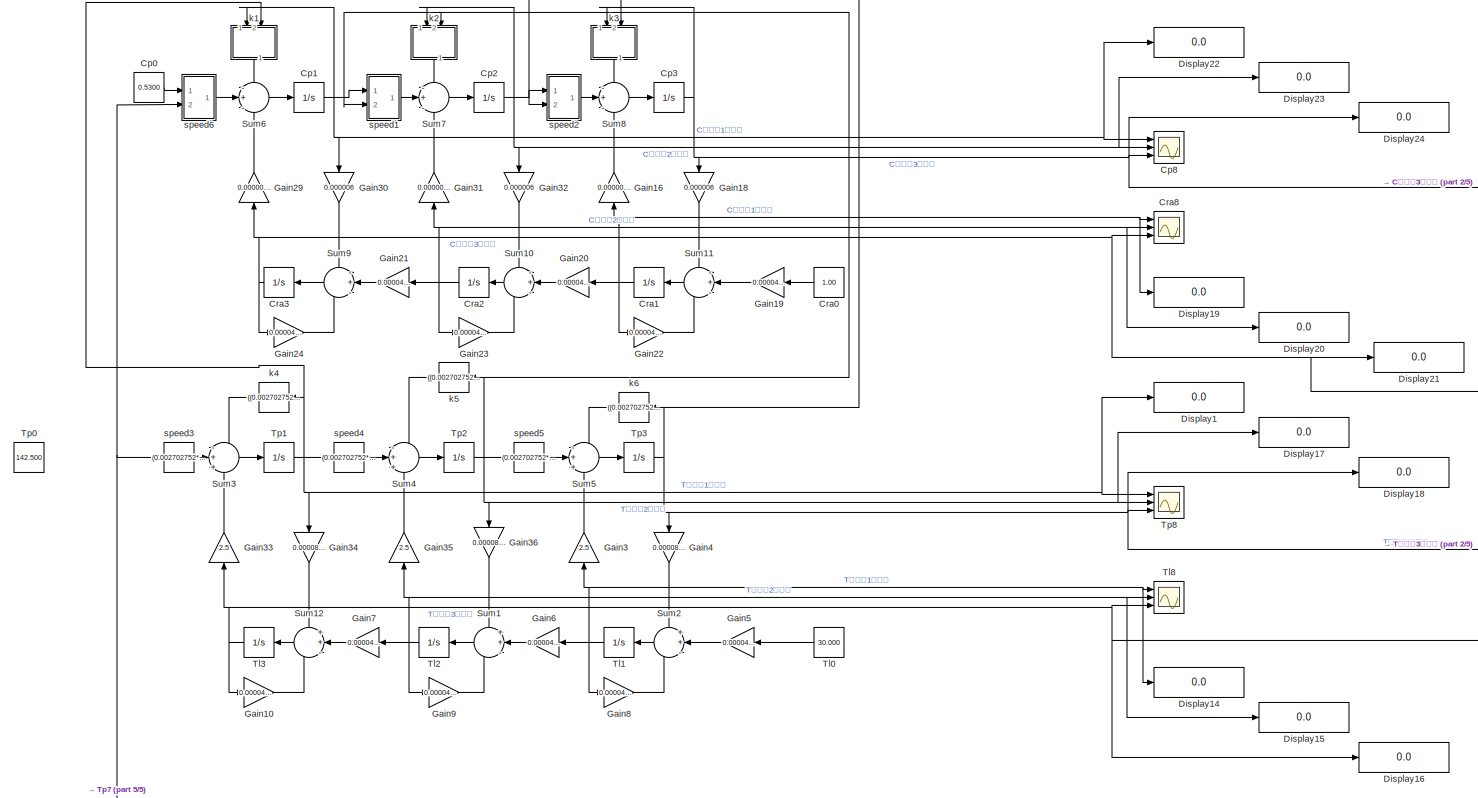
[diagram: root canvas - part 1/5, full width, top band]
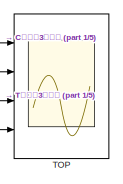
[diagram: root canvas - part 2/5, top right region]
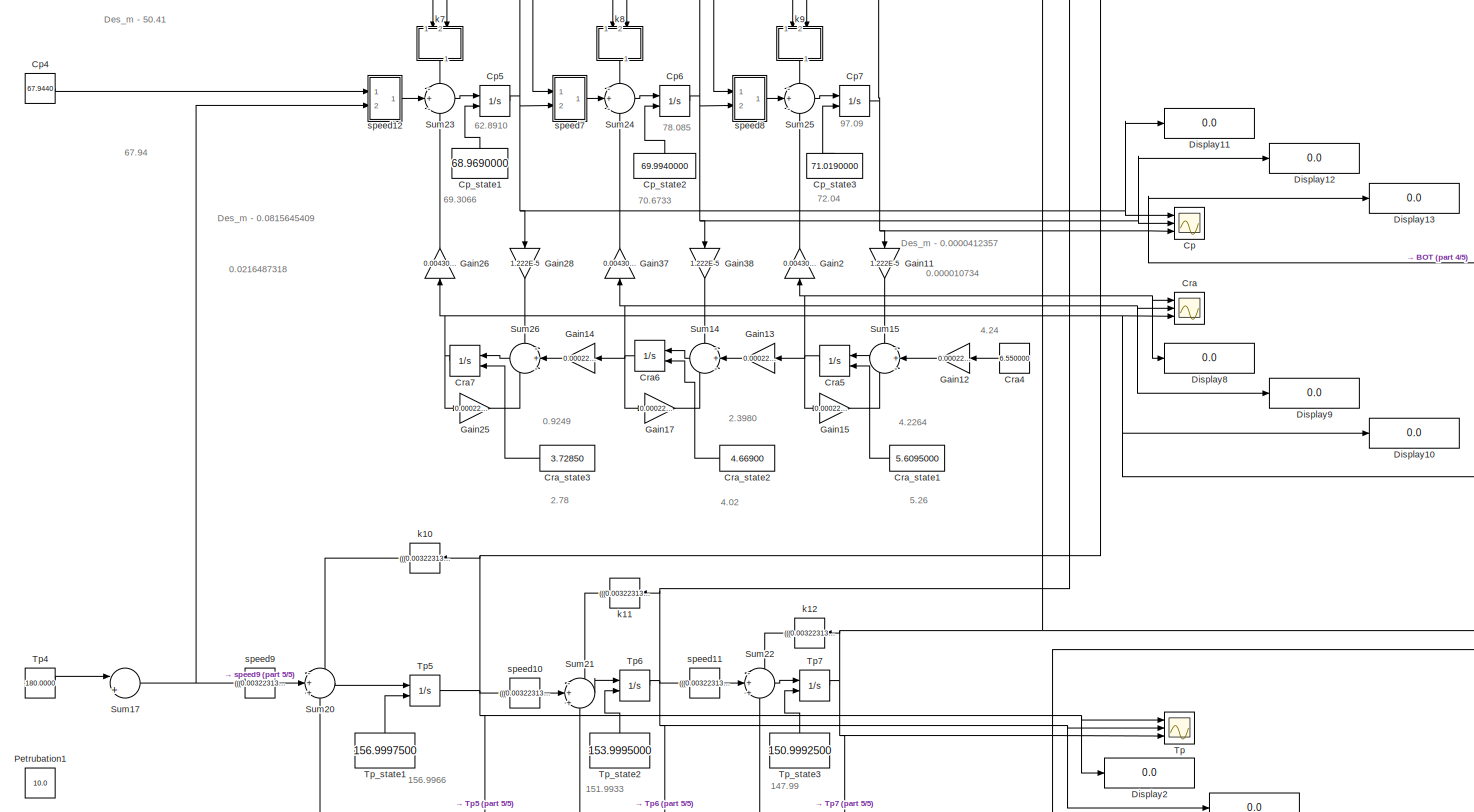
[diagram: root canvas - part 3/5, full width, middle band]
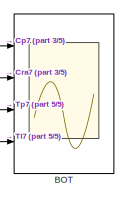
[diagram: root canvas - part 4/5, middle right region]
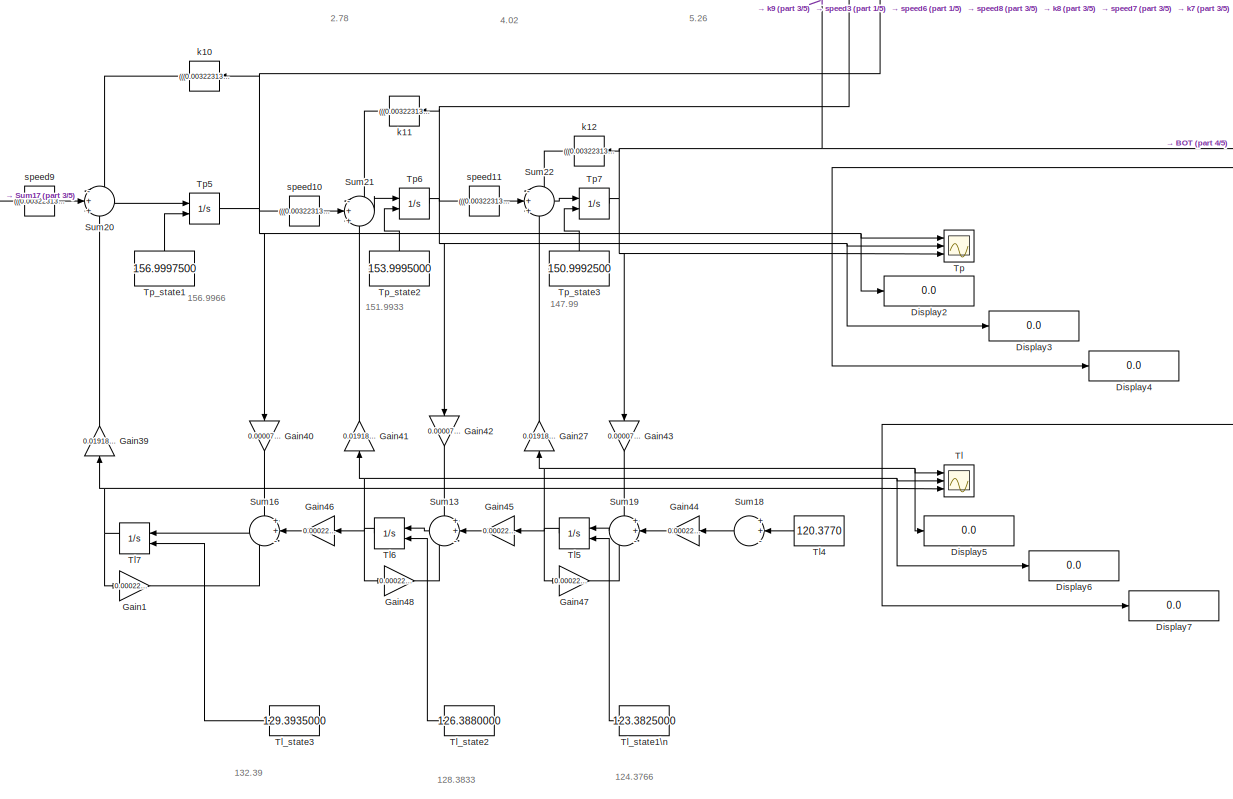
[diagram: root canvas - part 5/5, bottom center region]
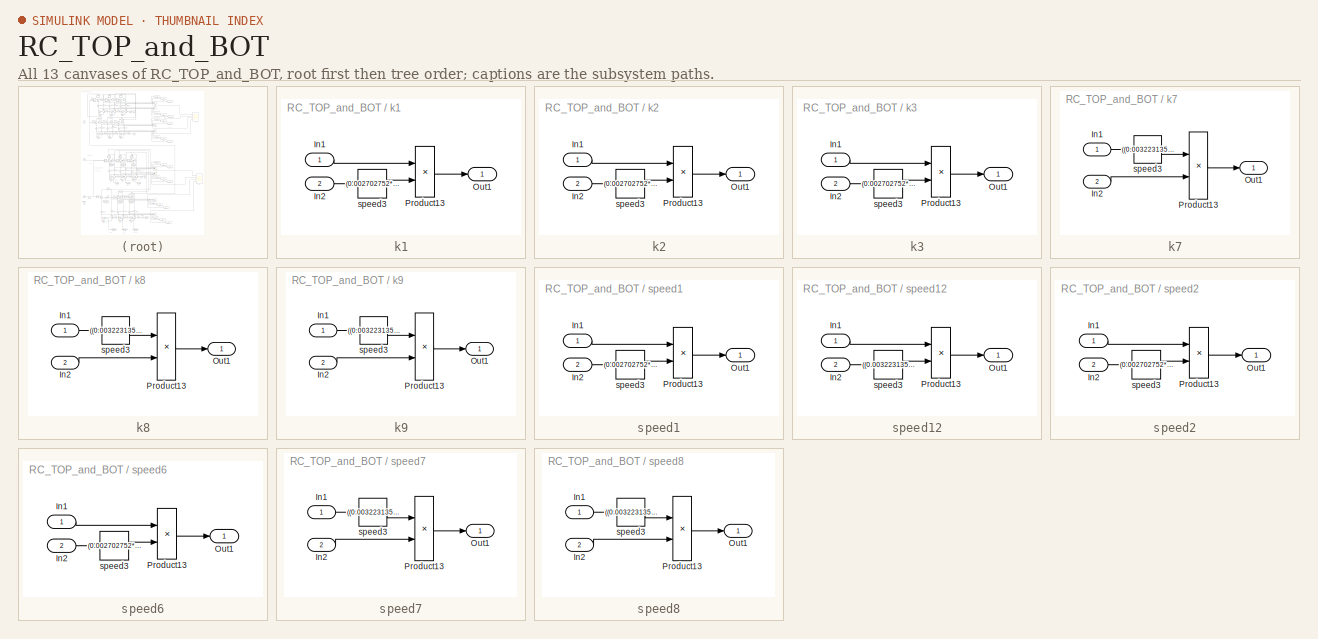
[diagram: thumbnail index - all 13 canvases of the model, root first then tree order]
MODEL RC_TOP_and_BOT
KIND model
BLOCK [Scope] BOT
  Floating = off
  NumInputPorts = 4
  Ports = [4]
  SID = 485
  ScopeSpecificationString = Simulink.scopes.TimeScopeBlockCfg('CurrentConfiguration', extmgr.ConfigurationSet(extmgr.Configuration('Core','General UI',true,'FigureColor',[1 1 1]),extmgr.Configuration('Core','Source UI',true),extmgr.Configuration('Sources','WiredSimulink',true,'DataLogging',true,'DataLoggingVariableName','TV_SM2','DataLoggingSaveFormat','StructureWithTime','SampleTime','0','DataLoggingDecimation','1','DataLog...<+5994ch>
BLOCK [Scope] Cp
  Floating = off
  NumInputPorts = 3
  Ports = [3]
  SID = 238
  ScopeSpecificationString = C++SS(StrPVP('Location','[5, 49, 1371, 737]'),StrPVP('Open','off'),StrPVP('TickLabels','on'),StrPVP('ZoomMode','xonly'),MxPVP('AxesTitles',53,'struct(''axes1'',''%<SignalLabel>'',''axes2'',''%<SignalLabel>'',''axes3'',''%<SignalLabel>'')'),MxPVP('ScopeGraphics',56,'struct(''FigureColor'',''[1 1 1]'',''AxesColor'',''[1 1 1]'',''AxesTickColor'',''[0 0 0]'',''LineColors'',''[0 0 0;1 0 1;0 1 1;1 0 0;0...<+445ch>
BLOCK [Constant] Cp0
  SID = 4
  Value = 0.5300
BLOCK [Integrator] Cp1
  InitialCondition = 0.682000
  Ports = [1, 1]
  SID = 5
BLOCK [Integrator] Cp2
  InitialCondition = 0.834000
  Ports = [1, 1]
  SID = 6
BLOCK [Integrator] Cp3
  InitialCondition = 0.98600
  Ports = [1, 1]
  SID = 7
BLOCK [Constant] Cp4
  SID = 239
  Value = 67.9440
BLOCK [Integrator] Cp5
  InitialCondition = 69.3066
  InitialConditionSource = external
  Ports = [2, 1]
  SID = 240
BLOCK [Integrator] Cp6
  InitialCondition = 70.6733
  InitialConditionSource = external
  Ports = [2, 1]
  SID = 241
BLOCK [Integrator] Cp7
  InitialCondition = 72.04
  InitialConditionSource = external
  Ports = [2, 1]
  SID = 242
BLOCK [Scope] Cp8
  Floating = off
  NumInputPorts = 3
  Ports = [3]
  SID = 455
  ScopeSpecificationString = C++SS(StrPVP('Location','[5, 49, 1371, 737]'),StrPVP('Open','off'),StrPVP('TickLabels','on'),StrPVP('ZoomMode','xonly'),MxPVP('AxesTitles',53,'struct(''axes1'',''%<SignalLabel>'',''axes2'',''%<SignalLabel>'',''axes3'',''%<SignalLabel>'')'),MxPVP('ScopeGraphics',56,'struct(''FigureColor'',''[1 1 1]'',''AxesColor'',''[1 1 1]'',''AxesTickColor'',''[0 0 0]'',''LineColors'',''[0 0 0;1 0 1;0 1 1;1 0 0;0...<+446ch>
BLOCK [Constant] Cp_state1
  SID = 243
  Value = 68.9690000
BLOCK [Constant] Cp_state2
  SID = 244
  Value = 69.9940000
BLOCK [Constant] Cp_state3
  SID = 245
  Value = 71.0190000
BLOCK [Scope] Cra
  Floating = off
  NumInputPorts = 3
  Ports = [3]
  SID = 246
  ScopeSpecificationString = C++SS(StrPVP('Location','[5, 49, 1371, 737]'),StrPVP('Open','off'),StrPVP('TickLabels','on'),StrPVP('ZoomMode','xonly'),MxPVP('AxesTitles',53,'struct(''axes1'',''%<SignalLabel>'',''axes2'',''%<SignalLabel>'',''axes3'',''%<SignalLabel>'')'),MxPVP('ScopeGraphics',56,'struct(''FigureColor'',''[1 1 1]'',''AxesColor'',''[1 1 1]'',''AxesTickColor'',''[0 0 0]'',''LineColors'',''[0 0 0;1 0 1;0 1 1;1 0 0;0...<+458ch>
BLOCK [Constant] Cra0
  SID = 11
  Value = 1.00
BLOCK [Integrator] Cra1
  InitialCondition = 0.8882500
  Ports = [1, 1]
  SID = 12
BLOCK [Integrator] Cra2
  InitialCondition = 0.7765000
  Ports = [1, 1]
  SID = 13
BLOCK [Integrator] Cra3
  InitialCondition = 0.6647500
  Ports = [1, 1]
  SID = 14
BLOCK [Constant] Cra4
  SID = 247
  Value = 6.550000
BLOCK [Integrator] Cra5
  InitialCondition = 5.26
  InitialConditionSource = external
  Ports = [2, 1]
  SID = 248
BLOCK [Integrator] Cra6
  InitialCondition = 4.02
  InitialConditionSource = external
  Ports = [2, 1]
  SID = 249
BLOCK [Integrator] Cra7
  InitialCondition = 2.78
  InitialConditionSource = external
  Ports = [2, 1]
  SID = 250
BLOCK [Scope] Cra8
  Floating = off
  NumInputPorts = 3
  Ports = [3]
  SID = 456
  ScopeSpecificationString = C++SS(StrPVP('Location','[5, 49, 1371, 737]'),StrPVP('Open','off'),StrPVP('TickLabels','on'),StrPVP('ZoomMode','xonly'),MxPVP('AxesTitles',53,'struct(''axes1'',''%<SignalLabel>'',''axes2'',''%<SignalLabel>'',''axes3'',''%<SignalLabel>'')'),MxPVP('ScopeGraphics',56,'struct(''FigureColor'',''[1 1 1]'',''AxesColor'',''[1 1 1]'',''AxesTickColor'',''[0 0 0]'',''LineColors'',''[0 0 0;1 0 0;0 1 1;1 0 0;0...<+459ch>
BLOCK [Constant] Cra_state1
  SID = 251
  Value = 5.6095000
BLOCK [Constant] Cra_state2
  SID = 252
  Value = 4.66900
BLOCK [Constant] Cra_state3
  SID = 253
  Value = 3.72850
BLOCK [Display] Display1
  Decimation = 1
  Ports = [1]
  SID = 476
BLOCK [Display] Display10
  Decimation = 1
  Ports = [1]
  SID = 469
BLOCK [Display] Display11
  Decimation = 1
  Ports = [1]
  SID = 470
BLOCK [Display] Display12
  Decimation = 1
  Ports = [1]
  SID = 471
BLOCK [Display] Display13
  Decimation = 1
  Ports = [1]
  SID = 472
BLOCK [Display] Display14
  Decimation = 1
  Ports = [1]
  SID = 473
BLOCK [Display] Display15
  Decimation = 1
  Ports = [1]
  SID = 474
BLOCK [Display] Display16
  Decimation = 1
  Ports = [1]
  SID = 475
BLOCK [Display] Display17
  Decimation = 1
  Ports = [1]
  SID = 477
BLOCK [Display] Display18
  Decimation = 1
  Ports = [1]
  SID = 478
BLOCK [Display] Display19
  Decimation = 1
  Ports = [1]
  SID = 479
BLOCK [Display] Display2
  Decimation = 1
  Ports = [1]
  SID = 461
BLOCK [Display] Display20
  Decimation = 1
  Ports = [1]
  SID = 480
BLOCK [Display] Display21
  Decimation = 1
  Ports = [1]
  SID = 481
BLOCK [Display] Display22
  Decimation = 1
  Ports = [1]
  SID = 482
BLOCK [Display] Display23
  Decimation = 1
  Ports = [1]
  SID = 483
BLOCK [Display] Display24
  Decimation = 1
  Ports = [1]
  SID = 484
BLOCK [Display] Display3
  Decimation = 1
  Ports = [1]
  SID = 462
BLOCK [Display] Display4
  Decimation = 1
  Ports = [1]
  SID = 463
BLOCK [Display] Display5
  Decimation = 1
  Ports = [1]
  SID = 464
BLOCK [Display] Display6
  Decimation = 1
  Ports = [1]
  SID = 465
BLOCK [Display] Display7
  Decimation = 1
  Ports = [1]
  SID = 466
BLOCK [Display] Display8
  Decimation = 1
  Ports = [1]
  SID = 467
BLOCK [Display] Display9
  Decimation = 1
  Ports = [1]
  SID = 468
BLOCK [Gain] Gain1
  Gain = 0.0002291314/0.5+0.0000777
  OutDataTypeStr = Inherit: Inherit via internal rule
  ParamDataTypeStr = Inherit: Inherit via internal rule
  SID = 334
  SaturateOnIntegerOverflow = off
BLOCK [Gain] Gain10
  Gain = 0.00004/1.17+0.0000855
  OutDataTypeStr = Inherit: Inherit via internal rule
  ParamDataTypeStr = Inherit: Inherit via internal rule
  SID = 17
  SaturateOnIntegerOverflow = off
BLOCK [Gain] Gain11
  Gain = 1.222E-5
  OutDataTypeStr = Inherit: Inherit via internal rule
  ParamDataTypeStr = Inherit: Inherit via internal rule
  SID = 336
  SaturateOnIntegerOverflow = off
BLOCK [Gain] Gain12
  Gain = 0.0002291314/0.5
  OutDataTypeStr = Inherit: Inherit via internal rule
  ParamDataTypeStr = Inherit: Inherit via internal rule
  SID = 337
  SaturateOnIntegerOverflow = off
BLOCK [Gain] Gain13
  Gain = 0.0002291314/0.5
  OutDataTypeStr = Inherit: Inherit via internal rule
  ParamDataTypeStr = Inherit: Inherit via internal rule
  SID = 338
  SaturateOnIntegerOverflow = off
BLOCK [Gain] Gain14
  Gain = 0.0002291314/0.5
  OutDataTypeStr = Inherit: Inherit via internal rule
  ParamDataTypeStr = Inherit: Inherit via internal rule
  SID = 339
  SaturateOnIntegerOverflow = off
BLOCK [Gain] Gain15
  Gain = 0.0002291314/0.5-(1.222E-5)*10^(-9)
  OutDataTypeStr = Inherit: Inherit via internal rule
  ParamDataTypeStr = Inherit: Inherit via internal rule
  SID = 340
  SaturateOnIntegerOverflow = off
BLOCK [Gain] Gain16
  Gain = 0.000000000145
  OutDataTypeStr = Inherit: Inherit via internal rule
  ParamDataTypeStr = Inherit: Inherit via internal rule
  SID = 18
  SaturateOnIntegerOverflow = off
BLOCK [Gain] Gain17
  Gain = 0.0002291314/0.5-(1.222E-5)*10^(-9)
  OutDataTypeStr = Inherit: Inherit via internal rule
  ParamDataTypeStr = Inherit: Inherit via internal rule
  SID = 341
  SaturateOnIntegerOverflow = off
BLOCK [Gain] Gain18
  Gain = 0.000006
  OutDataTypeStr = Inherit: Inherit via internal rule
  ParamDataTypeStr = Inherit: Inherit via internal rule
  SID = 19
  SaturateOnIntegerOverflow = off
BLOCK [Gain] Gain19
  Gain = 0.00004/1.17
  OutDataTypeStr = Inherit: Inherit via internal rule
  ParamDataTypeStr = Inherit: Inherit via internal rule
  SID = 20
  SaturateOnIntegerOverflow = off
BLOCK [Gain] Gain2
  Gain = 0.004302*10^(-9)
  OutDataTypeStr = Inherit: Inherit via internal rule
  ParamDataTypeStr = Inherit: Inherit via internal rule
  SID = 335
  SaturateOnIntegerOverflow = off
BLOCK [Gain] Gain20
  Gain = 0.00004/1.17
  OutDataTypeStr = Inherit: Inherit via internal rule
  ParamDataTypeStr = Inherit: Inherit via internal rule
  SID = 21
  SaturateOnIntegerOverflow = off
BLOCK [Gain] Gain21
  Gain = 0.00004/1.17
  OutDataTypeStr = Inherit: Inherit via internal rule
  ParamDataTypeStr = Inherit: Inherit via internal rule
  SID = 22
  SaturateOnIntegerOverflow = off
BLOCK [Gain] Gain22
  Gain = 0.00004/1.17-(0.000006*0.000000000145)
  OutDataTypeStr = Inherit: Inherit via internal rule
  ParamDataTypeStr = Inherit: Inherit via internal rule
  SID = 23
  SaturateOnIntegerOverflow = off
BLOCK [Gain] Gain23
  Gain = 0.00004/1.17-(0.000006*0.000000000145)
  OutDataTypeStr = Inherit: Inherit via internal rule
  ParamDataTypeStr = Inherit: Inherit via internal rule
  SID = 24
  SaturateOnIntegerOverflow = off
BLOCK [Gain] Gain24
  Gain = 0.00004/1.17-(0.000006*0.000000000145)
  OutDataTypeStr = Inherit: Inherit via internal rule
  ParamDataTypeStr = Inherit: Inherit via internal rule
  SID = 25
  SaturateOnIntegerOverflow = off
BLOCK [Gain] Gain25
  Gain = 0.0002291314/0.5-(1.222E-5)*10^(-9)
  OutDataTypeStr = Inherit: Inherit via internal rule
  ParamDataTypeStr = Inherit: Inherit via internal rule
  SID = 342
  SaturateOnIntegerOverflow = off
BLOCK [Gain] Gain26
  Gain = 0.004302*10^(-9)
  OutDataTypeStr = Inherit: Inherit via internal rule
  ParamDataTypeStr = Inherit: Inherit via internal rule
  SID = 343
  SaturateOnIntegerOverflow = off
BLOCK [Gain] Gain27
  Gain = 0.0191806
  OutDataTypeStr = Inherit: Inherit via internal rule
  ParamDataTypeStr = Inherit: Inherit via internal rule
  SID = 344
  SaturateOnIntegerOverflow = off
BLOCK [Gain] Gain28
  Gain = 1.222E-5
  OutDataTypeStr = Inherit: Inherit via internal rule
  ParamDataTypeStr = Inherit: Inherit via internal rule
  SID = 345
  SaturateOnIntegerOverflow = off
BLOCK [Gain] Gain29
  Gain = 0.000000000145
  OutDataTypeStr = Inherit: Inherit via internal rule
  ParamDataTypeStr = Inherit: Inherit via internal rule
  SID = 26
  SaturateOnIntegerOverflow = off
BLOCK [Gain] Gain3
  Gain = 2.5
  OutDataTypeStr = Inherit: Inherit via internal rule
  ParamDataTypeStr = Inherit: Inherit via internal rule
  SID = 27
  SaturateOnIntegerOverflow = off
BLOCK [Gain] Gain30
  Gain = 0.000006
  OutDataTypeStr = Inherit: Inherit via internal rule
  ParamDataTypeStr = Inherit: Inherit via internal rule
  SID = 28
  SaturateOnIntegerOverflow = off
BLOCK [Gain] Gain31
  Gain = 0.000000000145
  OutDataTypeStr = Inherit: Inherit via internal rule
  ParamDataTypeStr = Inherit: Inherit via internal rule
  SID = 29
  SaturateOnIntegerOverflow = off
BLOCK [Gain] Gain32
  Gain = 0.000006
  OutDataTypeStr = Inherit: Inherit via internal rule
  ParamDataTypeStr = Inherit: Inherit via internal rule
  SID = 30
  SaturateOnIntegerOverflow = off
BLOCK [Gain] Gain33
  Gain = 2.5
  OutDataTypeStr = Inherit: Inherit via internal rule
  ParamDataTypeStr = Inherit: Inherit via internal rule
  SID = 31
  SaturateOnIntegerOverflow = off
BLOCK [Gain] Gain34
  Gain = 0.0000855
  OutDataTypeStr = Inherit: Inherit via internal rule
  ParamDataTypeStr = Inherit: Inherit via internal rule
  SID = 32
  SaturateOnIntegerOverflow = off
BLOCK [Gain] Gain35
  Gain = 2.5
  OutDataTypeStr = Inherit: Inherit via internal rule
  ParamDataTypeStr = Inherit: Inherit via internal rule
  SID = 33
  SaturateOnIntegerOverflow = off
BLOCK [Gain] Gain36
  Gain = 0.0000855
  OutDataTypeStr = Inherit: Inherit via internal rule
  ParamDataTypeStr = Inherit: Inherit via internal rule
  SID = 34
  SaturateOnIntegerOverflow = off
BLOCK [Gain] Gain37
  Gain = 0.004302*10^(-9)
  OutDataTypeStr = Inherit: Inherit via internal rule
  ParamDataTypeStr = Inherit: Inherit via internal rule
  SID = 346
  SaturateOnIntegerOverflow = off
BLOCK [Gain] Gain38
  Gain = 1.222E-5
  OutDataTypeStr = Inherit: Inherit via internal rule
  ParamDataTypeStr = Inherit: Inherit via internal rule
  SID = 347
  SaturateOnIntegerOverflow = off
BLOCK [Gain] Gain39
  Gain = 0.0191806
  OutDataTypeStr = Inherit: Inherit via internal rule
  ParamDataTypeStr = Inherit: Inherit via internal rule
  SID = 348
  SaturateOnIntegerOverflow = off
BLOCK [Gain] Gain4
  Gain = 0.0000855
  OutDataTypeStr = Inherit: Inherit via internal rule
  ParamDataTypeStr = Inherit: Inherit via internal rule
  SID = 35
  SaturateOnIntegerOverflow = off
BLOCK [Gain] Gain40
  Gain = 0.0000777
  OutDataTypeStr = Inherit: Inherit via internal rule
  ParamDataTypeStr = Inherit: Inherit via internal rule
  SID = 349
  SaturateOnIntegerOverflow = off
BLOCK [Gain] Gain41
  Gain = 0.0191806
  OutDataTypeStr = Inherit: Inherit via internal rule
  ParamDataTypeStr = Inherit: Inherit via internal rule
  SID = 350
  SaturateOnIntegerOverflow = off
BLOCK [Gain] Gain42
  Gain = 0.0000777
  OutDataTypeStr = Inherit: Inherit via internal rule
  ParamDataTypeStr = Inherit: Inherit via internal rule
  SID = 351
  SaturateOnIntegerOverflow = off
BLOCK [Gain] Gain43
  Gain = 0.0000777
  OutDataTypeStr = Inherit: Inherit via internal rule
  ParamDataTypeStr = Inherit: Inherit via internal rule
  SID = 352
  SaturateOnIntegerOverflow = off
BLOCK [Gain] Gain44
  Gain = 0.0002291314/0.5
  OutDataTypeStr = Inherit: Inherit via internal rule
  ParamDataTypeStr = Inherit: Inherit via internal rule
  SID = 353
  SaturateOnIntegerOverflow = off
BLOCK [Gain] Gain45
  Gain = 0.0002291314/0.5
  OutDataTypeStr = Inherit: Inherit via internal rule
  ParamDataTypeStr = Inherit: Inherit via internal rule
  SID = 354
  SaturateOnIntegerOverflow = off
BLOCK [Gain] Gain46
  Gain = 0.0002291314/0.5
  OutDataTypeStr = Inherit: Inherit via internal rule
  ParamDataTypeStr = Inherit: Inherit via internal rule
  SID = 355
  SaturateOnIntegerOverflow = off
BLOCK [Gain] Gain47
  Gain = 0.0002291314/0.5+0.0000777
  OutDataTypeStr = Inherit: Inherit via internal rule
  ParamDataTypeStr = Inherit: Inherit via internal rule
  SID = 356
  SaturateOnIntegerOverflow = off
BLOCK [Gain] Gain48
  Gain = 0.0002291314/0.5+0.0000777
  OutDataTypeStr = Inherit: Inherit via internal rule
  ParamDataTypeStr = Inherit: Inherit via internal rule
  SID = 357
  SaturateOnIntegerOverflow = off
BLOCK [Gain] Gain5
  Gain = 0.00004/1.17
  OutDataTypeStr = Inherit: Inherit via internal rule
  ParamDataTypeStr = Inherit: Inherit via internal rule
  SID = 36
  SaturateOnIntegerOverflow = off
BLOCK [Gain] Gain6
  Gain = 0.00004/1.17
  OutDataTypeStr = Inherit: Inherit via internal rule
  ParamDataTypeStr = Inherit: Inherit via internal rule
  SID = 37
  SaturateOnIntegerOverflow = off
BLOCK [Gain] Gain7
  Gain = 0.00004/1.17
  OutDataTypeStr = Inherit: Inherit via internal rule
  ParamDataTypeStr = Inherit: Inherit via internal rule
  SID = 38
  SaturateOnIntegerOverflow = off
BLOCK [Gain] Gain8
  Gain = 0.00004/1.17+0.0000855
  OutDataTypeStr = Inherit: Inherit via internal rule
  ParamDataTypeStr = Inherit: Inherit via internal rule
  SID = 39
  SaturateOnIntegerOverflow = off
BLOCK [Gain] Gain9
  Gain = 0.00004/1.17+0.0000855
  OutDataTypeStr = Inherit: Inherit via internal rule
  ParamDataTypeStr = Inherit: Inherit via internal rule
  SID = 40
  SaturateOnIntegerOverflow = off
BLOCK [Constant] Petrubation1
  SID = 460
  Value = 10.0
BLOCK [Sum] Sum1
  IconShape = round
  InputSameDT = off
  Inputs = ++-
  OutDataTypeStr = Inherit: Inherit via internal rule
  Ports = [3, 1]
  SID = 166
  SaturateOnIntegerOverflow = off
BLOCK [Sum] Sum10
  IconShape = round
  InputSameDT = off
  Inputs = -+-
  OutDataTypeStr = Inherit: Inherit via internal rule
  Ports = [3, 1]
  SID = 167
  SaturateOnIntegerOverflow = off
BLOCK [Sum] Sum11
  IconShape = round
  InputSameDT = off
  Inputs = -+-
  OutDataTypeStr = Inherit: Inherit via internal rule
  Ports = [3, 1]
  SID = 168
  SaturateOnIntegerOverflow = off
BLOCK [Sum] Sum12
  IconShape = round
  InputSameDT = off
  Inputs = ++-
  OutDataTypeStr = Inherit: Inherit via internal rule
  Ports = [3, 1]
  SID = 169
  SaturateOnIntegerOverflow = off
BLOCK [Sum] Sum13
  IconShape = round
  InputSameDT = off
  Inputs = ++-
  OutDataTypeStr = Inherit: Inherit via internal rule
  Ports = [3, 1]
  SID = 358
  SaturateOnIntegerOverflow = off
BLOCK [Sum] Sum14
  IconShape = round
  InputSameDT = off
  Inputs = -+-
  OutDataTypeStr = Inherit: Inherit via internal rule
  Ports = [3, 1]
  SID = 359
  SaturateOnIntegerOverflow = off
BLOCK [Sum] Sum15
  IconShape = round
  InputSameDT = off
  Inputs = -+-
  OutDataTypeStr = Inherit: Inherit via internal rule
  Ports = [3, 1]
  SID = 360
  SaturateOnIntegerOverflow = off
BLOCK [Sum] Sum16
  IconShape = round
  InputSameDT = off
  Inputs = ++-
  OutDataTypeStr = Inherit: Inherit via internal rule
  Ports = [3, 1]
  SID = 361
  SaturateOnIntegerOverflow = off
BLOCK [Sum] Sum17
  IconShape = round
  InputSameDT = off
  Inputs = |++
  OutDataTypeStr = Inherit: Inherit via internal rule
  Ports = [2, 1]
  SID = 362
  SaturateOnIntegerOverflow = off
BLOCK [Sum] Sum18
  IconShape = round
  InputSameDT = off
  Inputs = ++-
  OutDataTypeStr = Inherit: Inherit via internal rule
  Ports = [3, 1]
  SID = 363
  SaturateOnIntegerOverflow = off
BLOCK [Sum] Sum19
  IconShape = round
  InputSameDT = off
  Inputs = ++-
  OutDataTypeStr = Inherit: Inherit via internal rule
  Ports = [3, 1]
  SID = 364
  SaturateOnIntegerOverflow = off
BLOCK [Sum] Sum2
  IconShape = round
  InputSameDT = off
  Inputs = ++-
  OutDataTypeStr = Inherit: Inherit via internal rule
  Ports = [3, 1]
  SID = 170
  SaturateOnIntegerOverflow = off
BLOCK [Sum] Sum20
  IconShape = round
  InputSameDT = off
  Inputs = -++
  OutDataTypeStr = Inherit: Inherit via internal rule
  Ports = [3, 1]
  SID = 365
  SaturateOnIntegerOverflow = off
BLOCK [Sum] Sum21
  IconShape = round
  InputSameDT = off
  Inputs = -++
  OutDataTypeStr = Inherit: Inherit via internal rule
  Ports = [3, 1]
  SID = 366
  SaturateOnIntegerOverflow = off
BLOCK [Sum] Sum22
  IconShape = round
  InputSameDT = off
  Inputs = -++
  OutDataTypeStr = Inherit: Inherit via internal rule
  Ports = [3, 1]
  SID = 367
  SaturateOnIntegerOverflow = off
BLOCK [Sum] Sum23
  IconShape = round
  InputSameDT = off
  Inputs = -+-
  OutDataTypeStr = Inherit: Inherit via internal rule
  Ports = [3, 1]
  SID = 368
  SaturateOnIntegerOverflow = off
BLOCK [Sum] Sum24
  IconShape = round
  InputSameDT = off
  Inputs = -+-
  OutDataTypeStr = Inherit: Inherit via internal rule
  Ports = [3, 1]
  SID = 369
  SaturateOnIntegerOverflow = off
BLOCK [Sum] Sum25
  IconShape = round
  InputSameDT = off
  Inputs = -+-
  OutDataTypeStr = Inherit: Inherit via internal rule
  Ports = [3, 1]
  SID = 370
  SaturateOnIntegerOverflow = off
BLOCK [Sum] Sum26
  IconShape = round
  InputSameDT = off
  Inputs = -+-
  OutDataTypeStr = Inherit: Inherit via internal rule
  Ports = [3, 1]
  SID = 371
  SaturateOnIntegerOverflow = off
BLOCK [Sum] Sum3
  IconShape = round
  InputSameDT = off
  Inputs = -++
  OutDataTypeStr = Inherit: Inherit via internal rule
  Ports = [3, 1]
  SID = 171
  SaturateOnIntegerOverflow = off
BLOCK [Sum] Sum4
  IconShape = round
  InputSameDT = off
  Inputs = -++
  OutDataTypeStr = Inherit: Inherit via internal rule
  Ports = [3, 1]
  SID = 172
  SaturateOnIntegerOverflow = off
BLOCK [Sum] Sum5
  IconShape = round
  InputSameDT = off
  Inputs = -++
  OutDataTypeStr = Inherit: Inherit via internal rule
  Ports = [3, 1]
  SID = 173
  SaturateOnIntegerOverflow = off
BLOCK [Sum] Sum6
  IconShape = round
  InputSameDT = off
  Inputs = -+-
  OutDataTypeStr = Inherit: Inherit via internal rule
  Ports = [3, 1]
  SID = 174
  SaturateOnIntegerOverflow = off
BLOCK [Sum] Sum7
  IconShape = round
  InputSameDT = off
  Inputs = -+-
  OutDataTypeStr = Inherit: Inherit via internal rule
  Ports = [3, 1]
  SID = 175
  SaturateOnIntegerOverflow = off
BLOCK [Sum] Sum8
  IconShape = round
  InputSameDT = off
  Inputs = -+-
  OutDataTypeStr = Inherit: Inherit via internal rule
  Ports = [3, 1]
  SID = 176
  SaturateOnIntegerOverflow = off
BLOCK [Sum] Sum9
  IconShape = round
  InputSameDT = off
  Inputs = -+-
  OutDataTypeStr = Inherit: Inherit via internal rule
  Ports = [3, 1]
  SID = 177
  SaturateOnIntegerOverflow = off
BLOCK [Scope] TOP
  Floating = off
  NumInputPorts = 4
  Ports = [4]
  SID = 487
  ScopeSpecificationString = Simulink.scopes.TimeScopeBlockCfg('CurrentConfiguration', extmgr.ConfigurationSet(extmgr.Configuration('Core','General UI',true,'FigureColor',[1 1 1]),extmgr.Configuration('Core','Source UI',true),extmgr.Configuration('Sources','WiredSimulink',true,'DataLogging',true,'DataLoggingVariableName','TF_SM2','DataLoggingSaveFormat','StructureWithTime','SampleTime','0','DataLoggingDecimation','1','DataLog...<+6006ch>
BLOCK [Scope] Tl
  Floating = off
  NumInputPorts = 3
  Ports = [3]
  SID = 372
  ScopeSpecificationString = C++SS(StrPVP('Location','[5, 49, 1371, 737]'),StrPVP('Open','off'),StrPVP('TickLabels','on'),StrPVP('ZoomMode','xonly'),MxPVP('AxesTitles',53,'struct(''axes1'',''%<SignalLabel>'',''axes2'',''%<SignalLabel>'',''axes3'',''%<SignalLabel>'')'),MxPVP('ScopeGraphics',56,'struct(''FigureColor'',''[1 1 1]'',''AxesColor'',''[1 1 1]'',''AxesTickColor'',''[0 0 0]'',''LineColors'',''[0 0 0;1 0 1;0 1 1;1 0 0;0...<+471ch>
BLOCK [Constant] Tl0
  SID = 459
  Value = 30.000
BLOCK [Integrator] Tl1
  InitialCondition = 57.25000
  Ports = [1, 1]
  SID = 180
BLOCK [Integrator] Tl2
  InitialCondition = 84.5000
  Ports = [1, 1]
  SID = 181
BLOCK [Integrator] Tl3
  InitialCondition = 111.7500
  Ports = [1, 1]
  SID = 182
BLOCK [Constant] Tl4
  SID = 373
  Value = 120.3770
BLOCK [Integrator] Tl5
  InitialCondition = 124.3766
  InitialConditionSource = external
  Ports = [2, 1]
  SID = 374
BLOCK [Integrator] Tl6
  InitialCondition = 128.3833
  InitialConditionSource = external
  Ports = [2, 1]
  SID = 375
BLOCK [Integrator] Tl7
  InitialCondition = 132.39
  InitialConditionSource = external
  Ports = [2, 1]
  SID = 376
BLOCK [Scope] Tl8
  Floating = off
  NumInputPorts = 3
  Ports = [3]
  SID = 457
  ScopeSpecificationString = C++SS(StrPVP('Location','[5, 49, 1371, 737]'),StrPVP('Open','off'),StrPVP('TickLabels','on'),StrPVP('ZoomMode','xonly'),MxPVP('AxesTitles',53,'struct(''axes1'',''%<SignalLabel>'',''axes2'',''%<SignalLabel>'',''axes3'',''%<SignalLabel>'')'),MxPVP('ScopeGraphics',56,'struct(''FigureColor'',''[1 1 1]'',''AxesColor'',''[1 1 1]'',''AxesTickColor'',''[0 0 0]'',''LineColors'',''[0 0 0;1 0 1;0 1 1;1 0 0;0...<+472ch>
BLOCK [Constant] Tl_state1\n
  SID = 377
  Value = 123.3825000
BLOCK [Constant] Tl_state2
  SID = 378
  Value = 126.3880000
BLOCK [Constant] Tl_state3
  SID = 379
  Value = 129.3935000
BLOCK [Scope] Tp
  Floating = off
  NumInputPorts = 3
  Ports = [3]
  SID = 380
  ScopeSpecificationString = Simulink.scopes.TimeScopeBlockCfg('CurrentConfiguration', extmgr.ConfigurationSet(extmgr.Configuration('Core','General UI',true,'FigureColor',[1 1 1]),extmgr.Configuration('Core','Source UI',true),extmgr.Configuration('Sources','WiredSimulink',true,'DataLogging',true,'DataLoggingVariableName','TV_SM','DataLoggingSaveFormat','StructureWithTime','SampleTime','0','DataLoggingDecimation','1','DataLogg...<+5315ch>
BLOCK [Constant] Tp0
  SID = 189
  Value = 142.500
BLOCK [Integrator] Tp1
  InitialCondition = 118.2000
  Ports = [1, 1]
  SID = 190
BLOCK [Integrator] Tp2
  InitialCondition = 93.9000
  Ports = [1, 1]
  SID = 191
BLOCK [Integrator] Tp3
  IgnoreLimit = on
  InitialCondition = 69.600
  Ports = [1, 1]
  SID = 192
BLOCK [Constant] Tp4
  SID = 381
  Value = 180.0000
BLOCK [Integrator] Tp5
  InitialCondition = 156.9966
  InitialConditionSource = external
  Ports = [2, 1]
  SID = 382
BLOCK [Integrator] Tp6
  InitialCondition = 151.9933
  InitialConditionSource = external
  Ports = [2, 1]
  SID = 383
BLOCK [Integrator] Tp7
  IgnoreLimit = on
  InitialCondition = 147.99
  InitialConditionSource = external
  Ports = [2, 1]
  SID = 384
BLOCK [Scope] Tp8
  Floating = off
  NumInputPorts = 3
  Ports = [3]
  SID = 458
  ScopeSpecificationString = C++SS(StrPVP('Location','[5, 49, 1371, 737]'),StrPVP('Open','off'),StrPVP('TickLabels','on'),StrPVP('ZoomMode','xonly'),MxPVP('AxesTitles',53,'struct(''axes1'',''%<SignalLabel>'',''axes2'',''%<SignalLabel>'',''axes3'',''%<SignalLabel>'')'),MxPVP('ScopeGraphics',56,'struct(''FigureColor'',''[1 1 1]'',''AxesColor'',''[1 1 1]'',''AxesTickColor'',''[0 0 0]'',''LineColors'',''[0 0 0;1 0 1;0 1 1;1 0 0;0...<+464ch>
BLOCK [Constant] Tp_state1
  SID = 385
  Value = 156.9997500
BLOCK [Constant] Tp_state2
  SID = 386
  Value = 153.9995000
BLOCK [Constant] Tp_state3
  SID = 387
  Value = 150.9992500
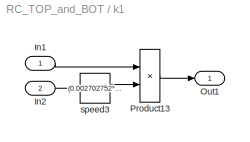
BLOCK [SubSystem] k1
  Ports = [2, 1]
  RequestExecContextInheritance = off
  SID = 194
BLOCK [Inport] k1/In1
  IconDisplay = Port number
  SID = 195
BLOCK [Inport] k1/In2
  IconDisplay = Port number
  Port = 2
  SID = 196
BLOCK [Outport] k1/Out1
  IconDisplay = Port number
  SID = 199
BLOCK [Product] k1/Product13
  Ports = [2, 1]
  RndMeth = Floor
  SID = 197
BLOCK [Fcn] k1/speed3
  Expr = (0.002702752*(273.15+u))/1.17-0.147
  SID = 198
BLOCK [Fcn] k10
  Expr = (((0.003223135*(273+u))/24.69822264)/0.5+0.0191806)*u
  SID = 406
BLOCK [Fcn] k11
  Expr = (((0.003223135*(273+u))/24.69822264)/0.5+0.0191806)*u
  SID = 407
BLOCK [Fcn] k12
  Expr = (((0.003223135*(273+u))/24.69822264)/0.5+0.0191806)*u
  SID = 408
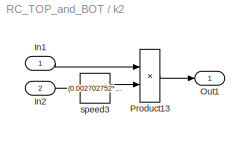
BLOCK [SubSystem] k2
  Ports = [2, 1]
  RequestExecContextInheritance = off
  SID = 200
BLOCK [Inport] k2/In1
  IconDisplay = Port number
  SID = 201
BLOCK [Inport] k2/In2
  IconDisplay = Port number
  Port = 2
  SID = 202
BLOCK [Outport] k2/Out1
  IconDisplay = Port number
  SID = 205
BLOCK [Product] k2/Product13
  Ports = [2, 1]
  RndMeth = Floor
  SID = 203
BLOCK [Fcn] k2/speed3
  Expr = (0.002702752*(273.15+u))/1.17-0.147
  SID = 204
BLOCK [SubSystem] k3
  Ports = [2, 1]
  RequestExecContextInheritance = off
  SID = 206
BLOCK [Inport] k3/In1
  IconDisplay = Port number
  SID = 207
BLOCK [Inport] k3/In2
  IconDisplay = Port number
  Port = 2
  SID = 208
BLOCK [Outport] k3/Out1
  IconDisplay = Port number
  SID = 211
BLOCK [Product] k3/Product13
  Ports = [2, 1]
  RndMeth = Floor
  SID = 209
BLOCK [Fcn] k3/speed3
  Expr = (0.002702752*(273.15+u))/1.17-0.147
  SID = 210
BLOCK [Fcn] k4
  Expr = ((0.002702752*(273.15+u))/1.17+2.5)*u
  SID = 212
BLOCK [Fcn] k5
  Expr = ((0.002702752*(273.15+u))/1.17+2.5)*u
  SID = 213
BLOCK [Fcn] k6
  Expr = ((0.002702752*(273.15+u))/1.17+2.5)*u
  SID = 214
BLOCK [SubSystem] k7
  Ports = [2, 1]
  RequestExecContextInheritance = off
  SID = 388
BLOCK [Inport] k7/In1
  IconDisplay = Port number
  SID = 389
BLOCK [Inport] k7/In2
  IconDisplay = Port number
  Port = 2
  SID = 390
BLOCK [Outport] k7/Out1
  IconDisplay = Port number
  SID = 393
BLOCK [Product] k7/Product13
  Ports = [2, 1]
  RndMeth = Floor
  SID = 391
BLOCK [Fcn] k7/speed3
  Expr = ((0.003223135*(273+u))/24.69822264)/0.5-0.004302
  SID = 392
BLOCK [SubSystem] k8
  Ports = [2, 1]
  RequestExecContextInheritance = off
  SID = 394
BLOCK [Inport] k8/In1
  IconDisplay = Port number
  SID = 395
BLOCK [Inport] k8/In2
  IconDisplay = Port number
  Port = 2
  SID = 396
BLOCK [Outport] k8/Out1
  IconDisplay = Port number
  SID = 399
BLOCK [Product] k8/Product13
  Ports = [2, 1]
  RndMeth = Floor
  SID = 397
BLOCK [Fcn] k8/speed3
  Expr = ((0.003223135*(273+u))/24.69822264)/0.5-0.004302
  SID = 398
BLOCK [SubSystem] k9
  Ports = [2, 1]
  RequestExecContextInheritance = off
  SID = 400
BLOCK [Inport] k9/In1
  IconDisplay = Port number
  SID = 401
BLOCK [Inport] k9/In2
  IconDisplay = Port number
  Port = 2
  SID = 402
BLOCK [Outport] k9/Out1
  IconDisplay = Port number
  SID = 405
BLOCK [Product] k9/Product13
  Ports = [2, 1]
  RndMeth = Floor
  SID = 403
BLOCK [Fcn] k9/speed3
  Expr = ((0.003223135*(273+u))/24.69822264)/0.5-0.004302
  SID = 404
BLOCK [SubSystem] speed1
  Ports = [2, 1]
  RequestExecContextInheritance = off
  SID = 215
BLOCK [Inport] speed1/In1
  IconDisplay = Port number
  SID = 216
BLOCK [Inport] speed1/In2
  IconDisplay = Port number
  Port = 2
  SID = 217
BLOCK [Outport] speed1/Out1
  IconDisplay = Port number
  SID = 220
BLOCK [Product] speed1/Product13
  Ports = [2, 1]
  RndMeth = Floor
  SID = 218
BLOCK [Fcn] speed1/speed3
  Expr = (0.002702752*(273.15+u))/1.17
  SID = 219
BLOCK [Fcn] speed10
  Expr = (((0.003223135*(273+u))/24.69822264)/0.5)*u
  SID = 422
BLOCK [Fcn] speed11
  Expr = (((0.003223135*(273+u))/24.69822264)/0.5)*u
  SID = 423
BLOCK [SubSystem] speed12
  Ports = [2, 1]
  RequestExecContextInheritance = off
  SID = 424
BLOCK [Inport] speed12/In1
  IconDisplay = Port number
  SID = 425
BLOCK [Inport] speed12/In2
  IconDisplay = Port number
  Port = 2
  SID = 426
BLOCK [Outport] speed12/Out1
  IconDisplay = Port number
  SID = 429
BLOCK [Product] speed12/Product13
  Ports = [2, 1]
  RndMeth = Floor
  SID = 427
BLOCK [Fcn] speed12/speed3
  Expr = ((0.003223135*(273+u))/24.69822264)/0.5
  SID = 428
BLOCK [SubSystem] speed2
  Ports = [2, 1]
  RequestExecContextInheritance = off
  SID = 221
BLOCK [Inport] speed2/In1
  IconDisplay = Port number
  SID = 222
BLOCK [Inport] speed2/In2
  IconDisplay = Port number
  Port = 2
  SID = 223
BLOCK [Outport] speed2/Out1
  IconDisplay = Port number
  SID = 226
BLOCK [Product] speed2/Product13
  Ports = [2, 1]
  RndMeth = Floor
  SID = 224
BLOCK [Fcn] speed2/speed3
  Expr = (0.002702752*(273.15+u))/1.17
  SID = 225
BLOCK [Fcn] speed3
  Expr = (0.002702752*(273.15+u))/1.17*u
  SID = 227
BLOCK [Fcn] speed4
  Expr = (0.002702752*(273.15+u))/1.17*u
  SID = 228
BLOCK [Fcn] speed5
  Expr = (0.002702752*(273.15+u))/1.17*u
  SID = 229
BLOCK [SubSystem] speed6
  Ports = [2, 1]
  RequestExecContextInheritance = off
  SID = 230
BLOCK [Inport] speed6/In1
  IconDisplay = Port number
  SID = 231
BLOCK [Inport] speed6/In2
  IconDisplay = Port number
  Port = 2
  SID = 232
BLOCK [Outport] speed6/Out1
  IconDisplay = Port number
  SID = 235
BLOCK [Product] speed6/Product13
  Ports = [2, 1]
  RndMeth = Floor
  SID = 233
BLOCK [Fcn] speed6/speed3
  Expr = (0.002702752*(273.15+u))/1.17
  SID = 234
BLOCK [SubSystem] speed7
  Ports = [2, 1]
  RequestExecContextInheritance = off
  SID = 409
BLOCK [Inport] speed7/In1
  IconDisplay = Port number
  SID = 410
BLOCK [Inport] speed7/In2
  IconDisplay = Port number
  Port = 2
  SID = 411
BLOCK [Outport] speed7/Out1
  IconDisplay = Port number
  SID = 414
BLOCK [Product] speed7/Product13
  Ports = [2, 1]
  RndMeth = Floor
  SID = 412
BLOCK [Fcn] speed7/speed3
  Expr = ((0.003223135*(273+u))/24.69822264)/0.5
  SID = 413
BLOCK [SubSystem] speed8
  Ports = [2, 1]
  RequestExecContextInheritance = off
  SID = 415
BLOCK [Inport] speed8/In1
  IconDisplay = Port number
  SID = 416
BLOCK [Inport] speed8/In2
  IconDisplay = Port number
  Port = 2
  SID = 417
BLOCK [Outport] speed8/Out1
  IconDisplay = Port number
  SID = 420
BLOCK [Product] speed8/Product13
  Ports = [2, 1]
  RndMeth = Floor
  SID = 418
BLOCK [Fcn] speed8/speed3
  Expr = ((0.003223135*(273+u))/24.69822264)/0.5
  SID = 419
BLOCK [Fcn] speed9
  Expr = (((0.003223135*(273+u))/24.69822264)/0.5)*u
  SID = 421
ANNOTATION (root): 0.000010734
ANNOTATION (root): 0.0216487318
ANNOTATION (root): 0.9249
ANNOTATION (root): 124.3766
ANNOTATION (root): 128.3833
ANNOTATION (root): 132.39
ANNOTATION (root): 147.99
ANNOTATION (root): 151.9933
ANNOTATION (root): 156.9966
ANNOTATION (root): 2.3980
ANNOTATION (root): 2.78
ANNOTATION (root): 4.02
ANNOTATION (root): 4.2264
ANNOTATION (root): 4.24
ANNOTATION (root): 5.26
ANNOTATION (root): 62.8910
ANNOTATION (root): 67.94
ANNOTATION (root): 69.3066
ANNOTATION (root): 70.6733
ANNOTATION (root): 72.04
ANNOTATION (root): 78.085
ANNOTATION (root): 97.09
ANNOTATION (root): Des_m - 0.0000412357
ANNOTATION (root): Des_m - 0.0815645409
ANNOTATION (root): Des_m - 50.41
LINE Cp0:1 -> speed6:1
NET Cp1:1 -> Cp8:1, Display22:1, Gain30:1, k1:1, speed1:1
NET Cp2:1 -> Cp8:2, Display23:1, Gain32:1, k2:1, speed2:1
NET Cp3:1 -> Cp8:3, Display24:1, Gain18:1, TOP:1, k3:1
LINE Cp4:1 -> speed12:1
NET Cp5:1 -> Cp:1, Display11:1, Gain28:1, k7:2, speed7:2
NET Cp6:1 -> Cp:2, Display12:1, Gain38:1, k8:2, speed8:2
NET Cp7:1 -> BOT:1, Cp:3, Display13:1, Gain11:1, k9:2
LINE Cp_state1:1 -> Cp5:2
LINE Cp_state2:1 -> Cp6:2
LINE Cp_state3:1 -> Cp7:2
LINE Cra0:1 -> Gain19:1
NET Cra1:1 -> Cra8:1, Display19:1, Gain16:1, Gain20:1, Gain22:1
NET Cra2:1 -> Cra8:2, Display20:1, Gain21:1, Gain23:1, Gain31:1
NET Cra3:1 -> Cra8:3, Display21:1, Gain24:1, Gain29:1, TOP:2
LINE Cra4:1 -> Gain12:1
NET Cra5:1 -> Cra:1, Display8:1, Gain13:1, Gain15:1, Gain2:1
NET Cra6:1 -> Cra:2, Display9:1, Gain14:1, Gain17:1, Gain37:1
NET Cra7:1 -> BOT:2, Cra:3, Display10:1, Gain25:1, Gain26:1
LINE Cra_state1:1 -> Cra5:2
LINE Cra_state2:1 -> Cra6:2
LINE Cra_state3:1 -> Cra7:2
LINE Gain10:1 -> Sum12:3
LINE Gain11:1 -> Sum15:1
LINE Gain12:1 -> Sum15:2
LINE Gain13:1 -> Sum14:2
LINE Gain14:1 -> Sum26:2
LINE Gain15:1 -> Sum15:3
LINE Gain16:1 -> Sum8:3
LINE Gain17:1 -> Sum14:3
LINE Gain18:1 -> Sum11:1
LINE Gain19:1 -> Sum11:2
LINE Gain1:1 -> Sum16:3
LINE Gain20:1 -> Sum10:2
LINE Gain21:1 -> Sum9:2
LINE Gain22:1 -> Sum11:3
LINE Gain23:1 -> Sum10:3
LINE Gain24:1 -> Sum9:3
LINE Gain25:1 -> Sum26:3
LINE Gain26:1 -> Sum23:3
LINE Gain27:1 -> Sum22:3
LINE Gain28:1 -> Sum26:1
LINE Gain29:1 -> Sum6:3
LINE Gain2:1 -> Sum25:3
LINE Gain30:1 -> Sum9:1
LINE Gain31:1 -> Sum7:3
LINE Gain32:1 -> Sum10:1
LINE Gain33:1 -> Sum3:3
LINE Gain34:1 -> Sum12:1
LINE Gain35:1 -> Sum4:3
LINE Gain36:1 -> Sum1:1
LINE Gain37:1 -> Sum24:3
LINE Gain38:1 -> Sum14:1
LINE Gain39:1 -> Sum20:3
LINE Gain3:1 -> Sum5:3
LINE Gain40:1 -> Sum16:1
LINE Gain41:1 -> Sum21:3
LINE Gain42:1 -> Sum13:1
LINE Gain43:1 -> Sum19:1
LINE Gain44:1 -> Sum19:2
LINE Gain45:1 -> Sum13:2
LINE Gain46:1 -> Sum16:2
LINE Gain47:1 -> Sum19:3
LINE Gain48:1 -> Sum13:3
LINE Gain4:1 -> Sum2:1
LINE Gain5:1 -> Sum2:2
LINE Gain6:1 -> Sum1:2
LINE Gain7:1 -> Sum12:2
LINE Gain8:1 -> Sum2:3
LINE Gain9:1 -> Sum1:3
LINE Sum10:1 -> Cra2:1
LINE Sum11:1 -> Cra1:1
LINE Sum12:1 -> Tl3:1
LINE Sum13:1 -> Tl6:1
LINE Sum14:1 -> Cra6:1
LINE Sum15:1 -> Cra5:1
LINE Sum16:1 -> Tl7:1
NET Sum17:1 -> speed12:2, speed9:1
LINE Sum18:1 -> Gain44:1
LINE Sum19:1 -> Tl5:1
LINE Sum1:1 -> Tl2:1
LINE Sum20:1 -> Tp5:1
LINE Sum21:1 -> Tp6:1
LINE Sum22:1 -> Tp7:1
LINE Sum23:1 -> Cp5:1
LINE Sum24:1 -> Cp6:1
LINE Sum25:1 -> Cp7:1
LINE Sum26:1 -> Cra7:1
LINE Sum2:1 -> Tl1:1
LINE Sum3:1 -> Tp1:1
LINE Sum4:1 -> Tp2:1
LINE Sum5:1 -> Tp3:1
LINE Sum6:1 -> Cp1:1
LINE Sum7:1 -> Cp2:1
LINE Sum8:1 -> Cp3:1
LINE Sum9:1 -> Cra3:1
LINE Tl0:1 -> Gain5:1
NET Tl1:1 -> Display14:1, Gain3:1, Gain6:1, Gain8:1, Tl8:1
NET Tl2:1 -> Display15:1, Gain35:1, Gain7:1, Gain9:1, Tl8:2
NET Tl3:1 -> Display16:1, Gain10:1, Gain33:1, TOP:4, Tl8:3
LINE Tl4:1 -> Sum18:2
NET Tl5:1 -> Display5:1, Gain27:1, Gain45:1, Gain47:1, Tl:1
NET Tl6:1 -> Display6:1, Gain41:1, Gain46:1, Gain48:1, Tl:2
NET Tl7:1 -> BOT:4, Display7:1, Gain1:1, Gain39:1, Tl:3
LINE Tl_state1\n:1 -> Tl5:2
LINE Tl_state2:1 -> Tl6:2
LINE Tl_state3:1 -> Tl7:2
NET Tp1:1 -> Display1:1, Gain34:1, Tp8:1, k1:2, k4:1, speed4:1
NET Tp2:1 -> Display17:1, Gain36:1, Tp8:2, k2:2, k5:1, speed1:2, speed5:1
NET Tp3:1 -> Display18:1, Gain4:1, TOP:3, Tp8:3, k3:2, k6:1, speed2:2
LINE Tp4:1 -> Sum17:1
NET Tp5:1 -> Display2:1, Gain40:1, Tp:1, k10:1, k7:1, speed10:1
NET Tp6:1 -> Display3:1, Gain42:1, Tp:2, k11:1, k8:1, speed11:1, speed7:1
NET Tp7:1 -> BOT:3, Display4:1, Gain43:1, Tp:3, k12:1, k9:1, speed3:1, speed6:2, speed8:1
LINE Tp_state1:1 -> Tp5:2
LINE Tp_state2:1 -> Tp6:2
LINE Tp_state3:1 -> Tp7:2
LINE k1/In1:1 -> k1/Product13:1
LINE k1/In2:1 -> k1/speed3:1
LINE k1/Product13:1 -> k1/Out1:1
LINE k1/speed3:1 -> k1/Product13:2
LINE k10:1 -> Sum20:1
LINE k11:1 -> Sum21:1
LINE k12:1 -> Sum22:1
LINE k1:1 -> Sum6:1
LINE k2/In1:1 -> k2/Product13:1
LINE k2/In2:1 -> k2/speed3:1
LINE k2/Product13:1 -> k2/Out1:1
LINE k2/speed3:1 -> k2/Product13:2
LINE k2:1 -> Sum7:1
LINE k3/In1:1 -> k3/Product13:1
LINE k3/In2:1 -> k3/speed3:1
LINE k3/Product13:1 -> k3/Out1:1
LINE k3/speed3:1 -> k3/Product13:2
LINE k3:1 -> Sum8:1
LINE k4:1 -> Sum3:1
LINE k5:1 -> Sum4:1
LINE k6:1 -> Sum5:1
LINE k7/In1:1 -> k7/speed3:1
LINE k7/In2:1 -> k7/Product13:2
LINE k7/Product13:1 -> k7/Out1:1
LINE k7/speed3:1 -> k7/Product13:1
LINE k7:1 -> Sum23:1
LINE k8/In1:1 -> k8/speed3:1
LINE k8/In2:1 -> k8/Product13:2
LINE k8/Product13:1 -> k8/Out1:1
LINE k8/speed3:1 -> k8/Product13:1
LINE k8:1 -> Sum24:1
LINE k9/In1:1 -> k9/speed3:1
LINE k9/In2:1 -> k9/Product13:2
LINE k9/Product13:1 -> k9/Out1:1
LINE k9/speed3:1 -> k9/Product13:1
LINE k9:1 -> Sum25:1
LINE speed1/In1:1 -> speed1/Product13:1
LINE speed1/In2:1 -> speed1/speed3:1
LINE speed1/Product13:1 -> speed1/Out1:1
LINE speed1/speed3:1 -> speed1/Product13:2
LINE speed10:1 -> Sum21:2
LINE speed11:1 -> Sum22:2
LINE speed12/In1:1 -> speed12/Product13:1
LINE speed12/In2:1 -> speed12/speed3:1
LINE speed12/Product13:1 -> speed12/Out1:1
LINE speed12/speed3:1 -> speed12/Product13:2
LINE speed12:1 -> Sum23:2
LINE speed1:1 -> Sum7:2
LINE speed2/In1:1 -> speed2/Product13:1
LINE speed2/In2:1 -> speed2/speed3:1
LINE speed2/Product13:1 -> speed2/Out1:1
LINE speed2/speed3:1 -> speed2/Product13:2
LINE speed2:1 -> Sum8:2
LINE speed3:1 -> Sum3:2
LINE speed4:1 -> Sum4:2
LINE speed5:1 -> Sum5:2
LINE speed6/In1:1 -> speed6/Product13:1
LINE speed6/In2:1 -> speed6/speed3:1
LINE speed6/Product13:1 -> speed6/Out1:1
LINE speed6/speed3:1 -> speed6/Product13:2
LINE speed6:1 -> Sum6:2
LINE speed7/In1:1 -> speed7/speed3:1
LINE speed7/In2:1 -> speed7/Product13:2
LINE speed7/Product13:1 -> speed7/Out1:1
LINE speed7/speed3:1 -> speed7/Product13:1
LINE speed7:1 -> Sum24:2
LINE speed8/In1:1 -> speed8/speed3:1
LINE speed8/In2:1 -> speed8/Product13:2
LINE speed8/Product13:1 -> speed8/Out1:1
LINE speed8/speed3:1 -> speed8/Product13:1
LINE speed8:1 -> Sum25:2
LINE speed9:1 -> Sum20:2
note: NET lines group one-source signal fan-out (src -> all destinations, sorted); 1:1 wires keep LINE
